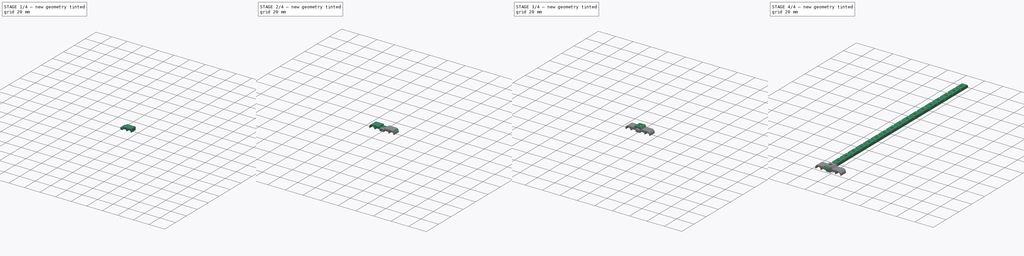
[diagram: build sequence overview — one tinted view per stage of 4, left to right]
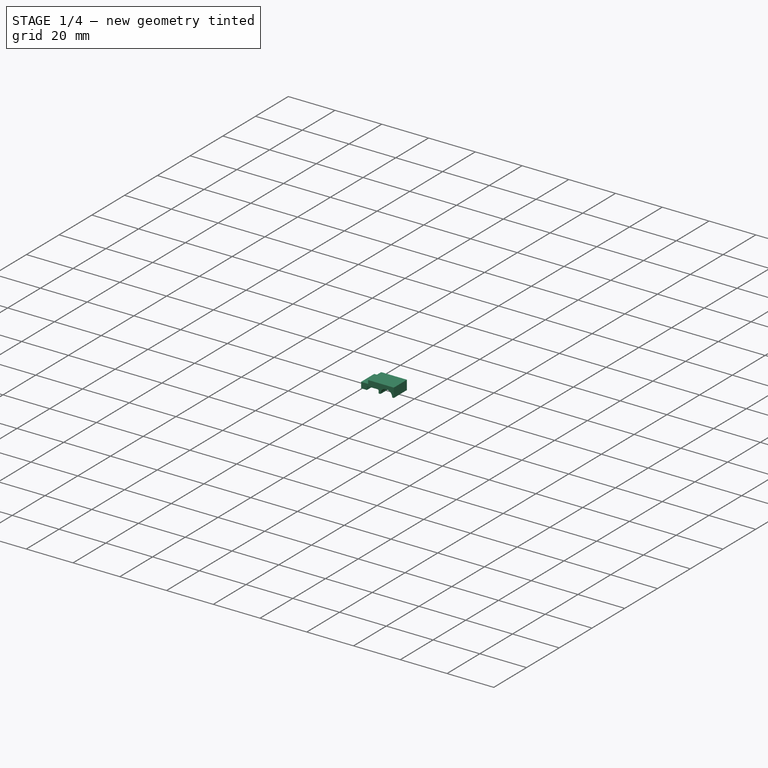
[diagram: stage 1 of 4 — iso view after this stage's code; geometry added in this stage tinted green]
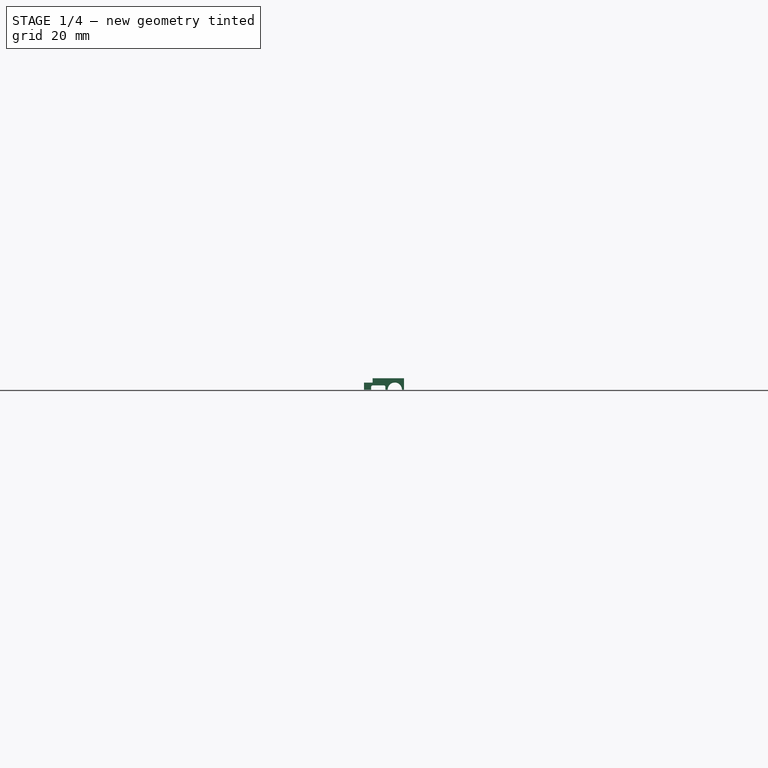
[diagram: stage 1 of 4 — front view after this stage's code; geometry added in this stage tinted green]
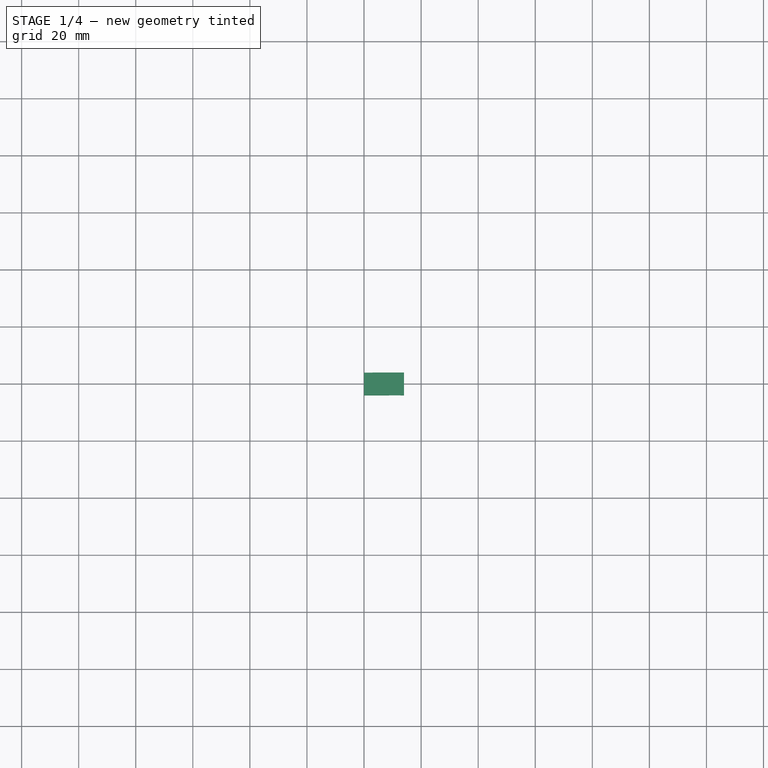
[diagram: stage 1 of 4 — top view after this stage's code; geometry added in this stage tinted green]
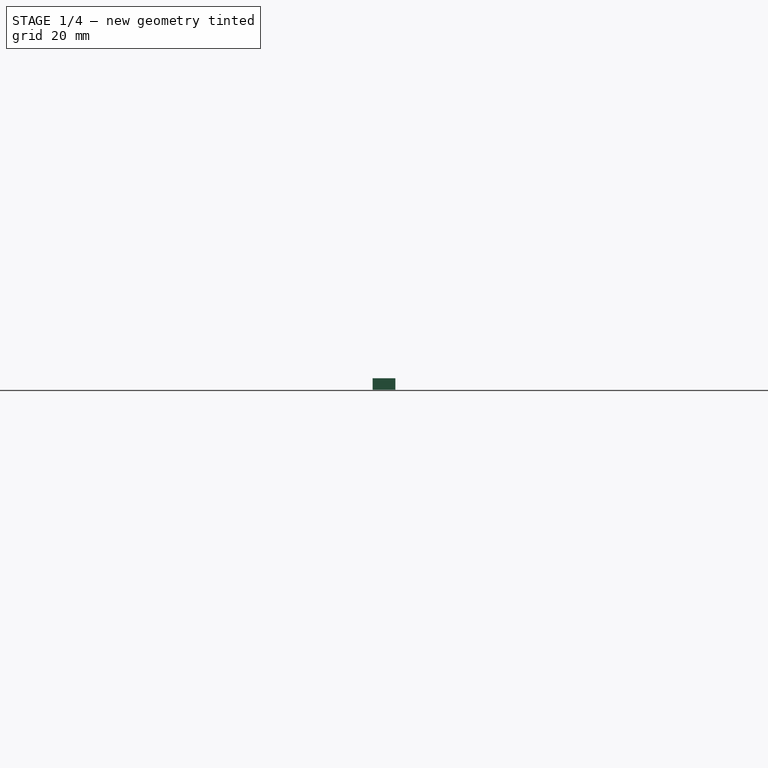
[diagram: stage 1 of 4 — right view after this stage's code; geometry added in this stage tinted green]
FCSTD DOCUMENT  (FreeCAD 1.2R20260204 (Git shallow))
Label: modular-drag-chain
License: All rights reserved
objects: Sketcher::SketchObject×7, PartDesign::Pocket×4, App::Point×3, PartDesign::Pad×3, PartDesign::Body×3, PartDesign::Fillet×2, PartDesign::LinearPattern×1, PartDesign::Chamfer×1, PartDesign::Mirrored×1, PartDesign::FeatureBase×1, App::Link×1
note: 53 computed .brp shape members not serialized (recipe doc carries the construction recipe); baked Part::Feature solids carry a one-line shape summary decoded from their .brp

FEATURE [PartDesign::Body] Body  label="TPU-DragChain"
  AllowCompound = true
  Group = -> [Sketch,Pad,Sketch001,Pocket,LinearPattern]
  Origin = -> Origin
  Tip = -> LinearPattern
FEATURE [App::Point] Origin003  label="Origine002"
  Role = Origin
FEATURE [Sketcher::SketchObject] Sketch002
  ArcFitTolerance = 1e-06
  AttachmentSupport = -> [Origin002]
  ExternalTypes = [0]
  FullyConstrained = true
  MakeInternals = false
  MapMode = 5
  Placement = pos=(0,0,0) rot=(1,0,0;1.5708rad)
  sketch-geometry (6):
    g0: LineSegment StartX=0 StartY=0 StartZ=0 EndX=3 EndY=0 EndZ=0
    g1: LineSegment StartX=3 StartY=0 StartZ=0 EndX=3 EndY=1.5 EndZ=0
    g2: LineSegment StartX=3 StartY=1.5 StartZ=0 EndX=14 EndY=1.5 EndZ=0
    g3: LineSegment StartX=14 StartY=1.5 StartZ=0 EndX=14 EndY=-2.5 EndZ=0
    g4: LineSegment StartX=14 StartY=-2.5 StartZ=0 EndX=0 EndY=-2.5 EndZ=0
    g5: LineSegment StartX=0 StartY=-2.5 StartZ=0 EndX=0 EndY=0 EndZ=0
  constraints (17):
    c: Coincident(g0,g-1)
    c: PointOnObject(g0,g-1)
    c: Coincident(g1,g0)
    c: Vertical(g1)
    c: Coincident(g2,g1)
    c: Horizontal(g2)
    c: Coincident(g3,g2)
    c: Vertical(g3)
    c: Coincident(g4,g3)
    c: Horizontal(g4)
    c: Coincident(g5,g4)
    c: Coincident(g5,g0)
    c: Vertical(g5)
    c: DistanceX(g0,g0) = 3
    c: DistanceY(g1,g1) = 1.5
    c: DistanceX(g4,g4) = 14
    c: DistanceY(g3,g3) = 4
FEATURE [PartDesign::Pad] Pad001
  Direction = (0,-1,2e-16)
  Length = 8
  Length2 = 10
  Profile = -> Sketch002
  ReferenceAxis = -> Sketch002 [N_Axis]
  Refine = true
  SideType = 2
  Suppressed = false
  Type = 0
  Type2 = 0
FEATURE [Sketcher::SketchObject] Sketch003
  ArcFitTolerance = 1e-06
  AttachmentSupport = -> [Origin002]
  ExternalGeometry = -> [Pad001]
  ExternalTypes = [0]
  FullyConstrained = true
  MakeInternals = false
  MapMode = 5
  Placement = pos=(0,0,0) rot=(1,0,0;1.5708rad)
  sketch-geometry (5):
    g0: Circle CenterX=10.8 CenterY=-2.5 CenterZ=0 NormalX=0 NormalY=0 NormalZ=1 AngleXU=0 Radius=2.5
    g1: LineSegment StartX=2.5 StartY=-2.5 StartZ=0 EndX=7.5 EndY=-2.5 EndZ=0
    g2: LineSegment StartX=7.5 StartY=-2.5 StartZ=0 EndX=7.5 EndY=-1 EndZ=0
    g3: LineSegment StartX=7.5 StartY=-1 StartZ=0 EndX=2.5 EndY=-1 EndZ=0
    g4: LineSegment StartX=2.5 StartY=-1 StartZ=0 EndX=2.5 EndY=-2.5 EndZ=0
  constraints (15):
    c: PointOnObject(g0,g-3)
    c: Diameter(g0) = 5
    c: Distance(g0,g-3) = 3.2
    c: Coincident(g1,g2)
    c: Coincident(g2,g3)
    c: Coincident(g3,g4)
    c: Coincident(g4,g1)
    c: Horizontal(g1)
    c: Horizontal(g3)
    c: Vertical(g2)
    c: Vertical(g4)
    c: PointOnObject(g1,g-3)
    c: DistanceX(g3,g3) = 5
    c: Distance(g-3,g1) = 2.5
    c: Distance(g2,g2) = 1.5
FEATURE [PartDesign::Pocket] Pocket001
  BaseFeature = -> Pad001
  Direction = (0,1,0)
  Length = 10
  Length2 = 5
  Profile = -> Sketch003
  ReferenceAxis = -> Sketch003 [N_Axis]
  Refine = true
  SideType = 2
  Suppressed = false
  Type = 0
  Type2 = 0
FEATURE [PartDesign::Fillet] Fillet
  Base = -> Pocket001 [Edge31,Edge32]
  BaseFeature = -> Pocket001
  Radius = 0.5
  Refine = true
  SupportTransform = false
  Suppressed = false
  UseAllEdges = false
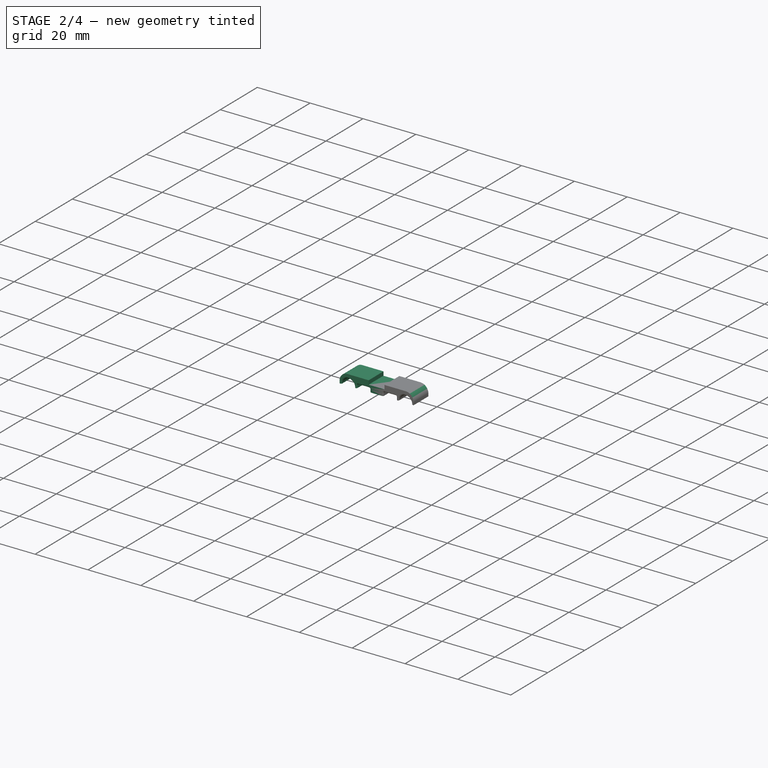
[diagram: stage 2 of 4 — iso view after this stage's code; geometry added in this stage tinted green]
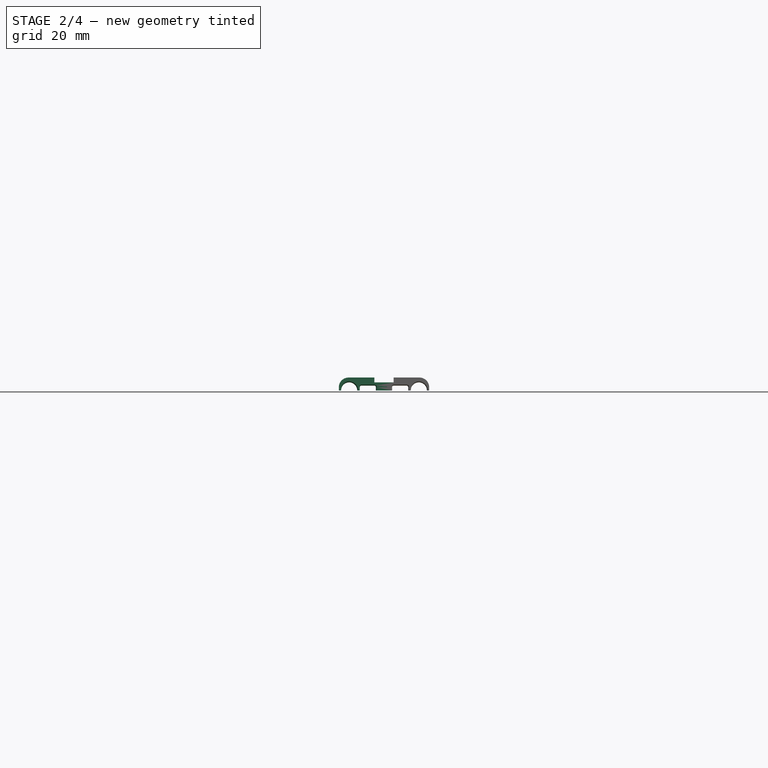
[diagram: stage 2 of 4 — front view after this stage's code; geometry added in this stage tinted green]
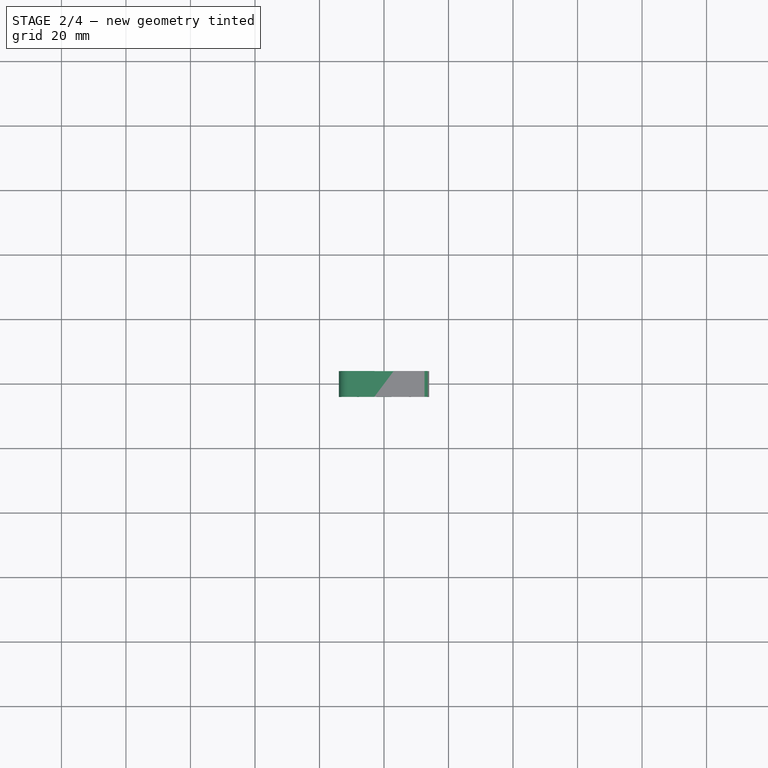
[diagram: stage 2 of 4 — top view after this stage's code; geometry added in this stage tinted green]
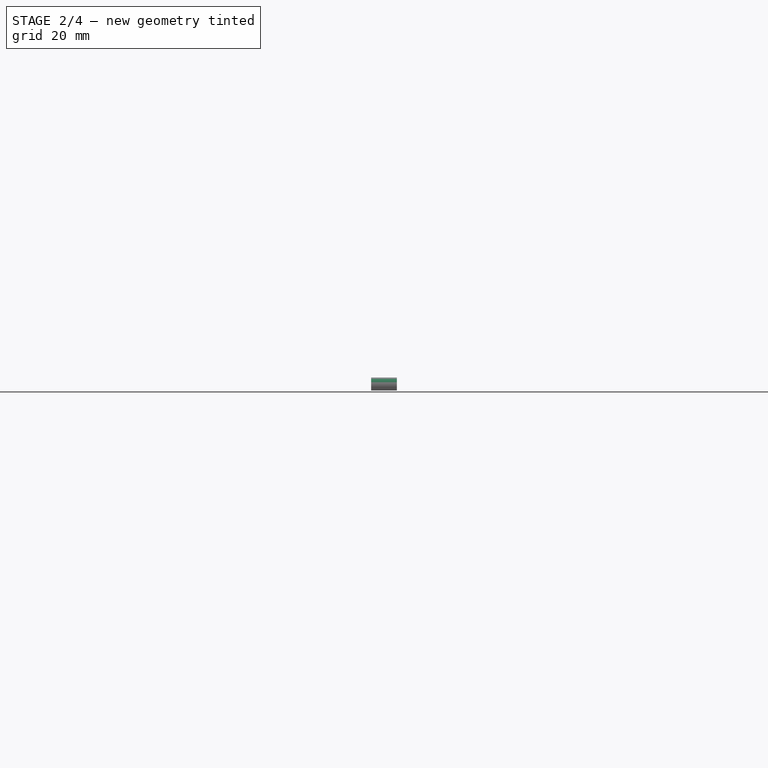
[diagram: stage 2 of 4 — right view after this stage's code; geometry added in this stage tinted green]
FEATURE [PartDesign::Fillet] Fillet001
  Base = -> Fillet [Edge36]
  BaseFeature = -> Fillet
  Radius = 3
  Refine = true
  SupportTransform = false
  Suppressed = false
  UseAllEdges = false
FEATURE [PartDesign::Chamfer] Chamfer
  Angle = 45
  Base = -> Fillet001 [Edge31,Edge8,Edge45,Edge15]
  BaseFeature = -> Fillet001
  ChamferType = 0
  FlipDirection = false
  Refine = true
  Size = 0.3
  Size2 = 1
  SupportTransform = false
  Suppressed = false
  UseAllEdges = false
FEATURE [PartDesign::Mirrored] Mirrored
  BaseFeature = -> Chamfer
  MirrorPlane = -> YZ_Plane001
  Refine = true
  Suppressed = false
  TransformMode = 1
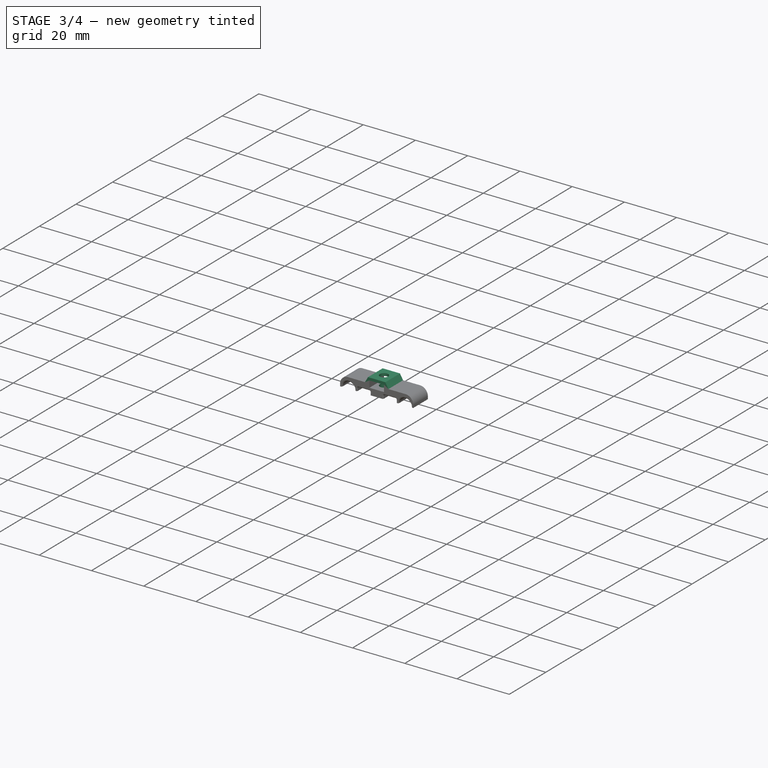
[diagram: stage 3 of 4 — iso view after this stage's code; geometry added in this stage tinted green]
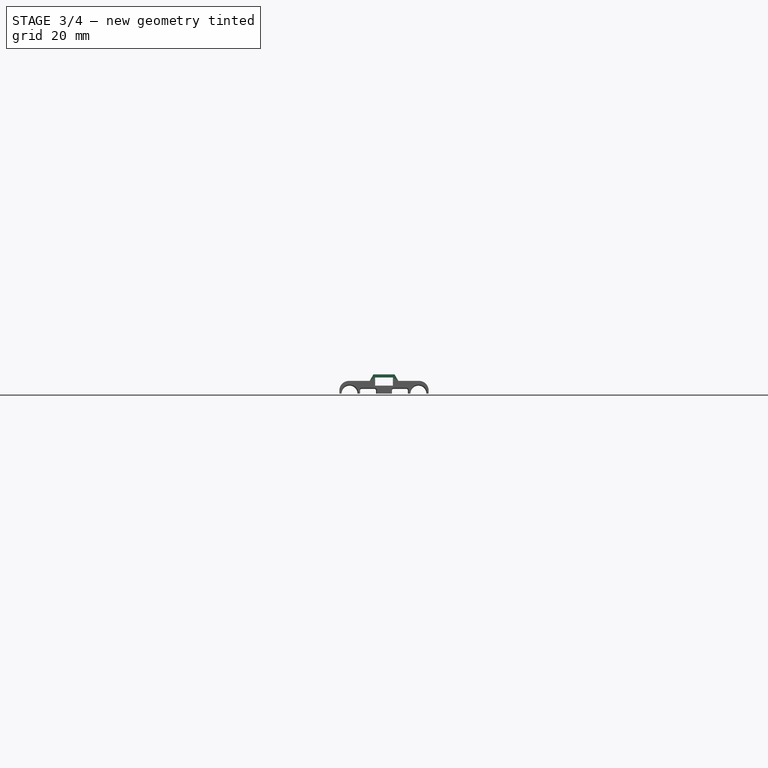
[diagram: stage 3 of 4 — front view after this stage's code; geometry added in this stage tinted green]
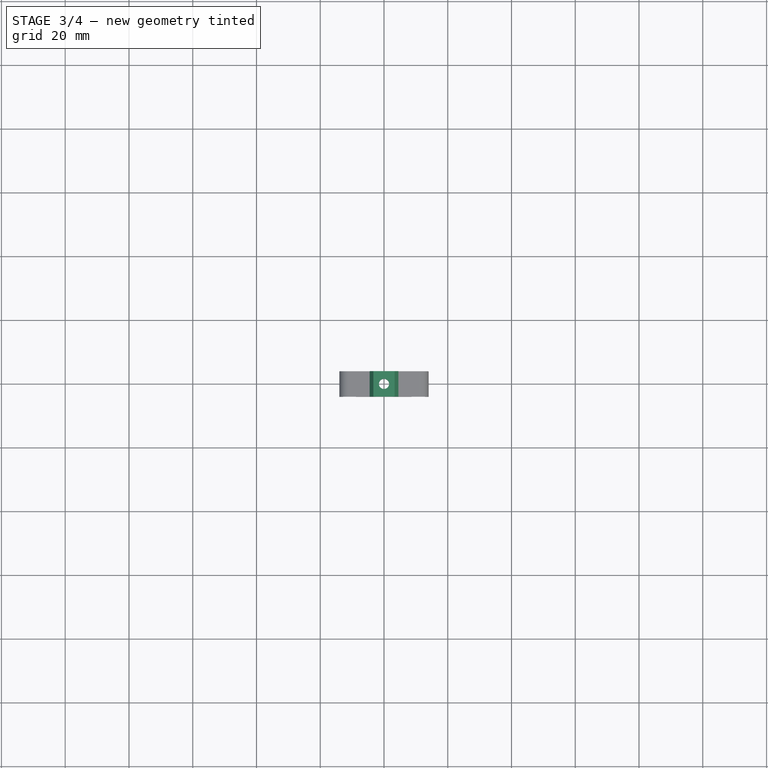
[diagram: stage 3 of 4 — top view after this stage's code; geometry added in this stage tinted green]
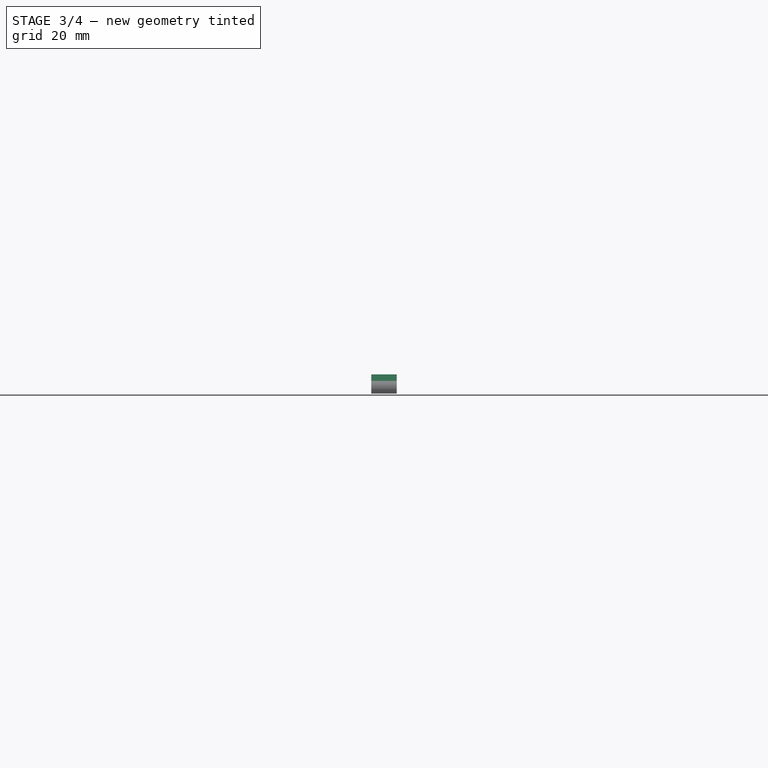
[diagram: stage 3 of 4 — right view after this stage's code; geometry added in this stage tinted green]
FEATURE [Sketcher::SketchObject] Sketch004
  ArcFitTolerance = 1e-06
  AttachmentSupport = -> [Mirrored]
  ExternalTypes = [0]
  FullyConstrained = true
  MakeInternals = false
  MapMode = 5
  Placement = pos=(0,0,-3e-16) rot=(0,0,1;0rad)
  sketch-geometry (1):
    g0: Circle CenterX=0 CenterY=0 CenterZ=0 NormalX=0 NormalY=0 NormalZ=1 AngleXU=0 Radius=1.6
  constraints (2):
    c: Coincident(g0,g-1)
    c: Diameter(g0) = 3.2
FEATURE [PartDesign::Pocket] Pocket002
  BaseFeature = -> Mirrored
  Direction = (0,0,-1)
  Length = 5
  Length2 = 5
  Profile = -> Sketch004
  ReferenceAxis = -> Sketch004 [N_Axis]
  Refine = true
  SideType = 0
  Suppressed = false
  Type = 0
  Type2 = 0
FEATURE [PartDesign::Body] Body001  label="CableHolderRear"
  AllowCompound = true
  Group = -> [Sketch002,Pad001,Sketch003,Pocket001,Fillet,Fillet001,Chamfer,Mirrored,Sketch004,Pocket002]
  Origin = -> Origin002
  Tip = -> Pocket002
FEATURE [App::Point] Origin005  label="Origine004"
  Role = Origin
FEATURE [PartDesign::FeatureBase] Clone
  BaseFeature = -> Body001
  Suppressed = false
FEATURE [Sketcher::SketchObject] Sketch005
  ArcFitTolerance = 1e-06
  AttachmentSupport = -> [Clone]
  ExternalGeometry = -> [Clone]
  ExternalTypes = [0,0]
  FullyConstrained = true
  MakeInternals = false
  MapMode = 5
  Placement = pos=(0,4,0) rot=(0,0.707107,0.707107;3.14159rad)
  sketch-geometry (14):
    g0: LineSegment StartX=-3 StartY=1.5 StartZ=0 EndX=-4.5 EndY=1.5 EndZ=0
    g1: LineSegment StartX=-4.5 StartY=1.5 StartZ=0 EndX=-3.31643 EndY=3.55 EndZ=0
    g2: LineSegment StartX=-3.31643 StartY=3.55 StartZ=0 EndX=3.31643 EndY=3.55 EndZ=0
    g3: LineSegment StartX=3.31643 StartY=3.55 StartZ=0 EndX=4.5 EndY=1.5 EndZ=0
    g4: LineSegment StartX=4.5 StartY=1.5 StartZ=0 EndX=3 EndY=1.5 EndZ=0
    g5: LineSegment StartX=-2.8 StartY=2.55 StartZ=0 EndX=-2.8 EndY=0 EndZ=0
    g6: LineSegment [constr] StartX=-2.8 StartY=0 StartZ=0 EndX=2.8 EndY=0 EndZ=0
    g7: LineSegment StartX=2.8 StartY=0 StartZ=0 EndX=2.8 EndY=2.55 EndZ=0
    g8: LineSegment StartX=2.8 StartY=2.55 StartZ=0 EndX=-2.8 EndY=2.55 EndZ=0
    g9: GeomPoint [constr] X=0 Y=1.275 Z=0
    g10: LineSegment StartX=-3 StartY=1.5 StartZ=0 EndX=-3 EndY=0 EndZ=0
    g11: LineSegment StartX=-3 StartY=0 StartZ=0 EndX=-2.8 EndY=0 EndZ=0
    g12: LineSegment StartX=2.8 StartY=0 StartZ=0 EndX=3 EndY=0 EndZ=0
    g13: LineSegment StartX=3 StartY=0 StartZ=0 EndX=3 EndY=1.5 EndZ=0
  constraints (34):
    c: Coincident(g0,g-3)
    c: Horizontal(g0)
    c: Coincident(g1,g0)
    c: Coincident(g2,g1)
    c: Coincident(g3,g2)
    c: Coincident(g4,g3)
    c: Coincident(g4,g-4)
    c: Horizontal(g4)
    c: Equal(g0,g4)
    c: Symmetric(g1,g2,g-2)
    c: Coincident(g5,g6)
    c: Coincident(g6,g7)
    c: Coincident(g7,g8)
    c: Coincident(g8,g5)
    c: Vertical(g5)
    c: Vertical(g7)
    c: Horizontal(g6)
    c: Horizontal(g8)
    c: Symmetric(g7,g5,g9)
    c: PointOnObject(g9,g-2)
    c: Distance(g7,g7) = 2.55
    c: PointOnObject(g6,g-1)
    c: Distance(g8,g8) = 5.6
    c: Distance(g2,g8) = 1
    c: Coincident(g10,g0)
    c: Coincident(g10,g-3)
    c: Coincident(g11,g10)
    c: Coincident(g11,g5)
    c: DistanceX(g0,g0) = 1.5
    c: Angle(g0,g1) = 1.0472
    c: Coincident(g12,g6)
    c: Coincident(g12,g-4)
    c: Coincident(g13,g12)
    c: Coincident(g13,g4)
FEATURE [PartDesign::Pad] Pad002
  BaseFeature = -> Clone
  Direction = (0,1,0)
  Length = 8
  Length2 = 10
  Profile = -> Sketch005
  ReferenceAxis = -> Sketch005 [N_Axis]
  Refine = true
  Reversed = true
  SideType = 0
  Suppressed = false
  Type = 0
  Type2 = 0
FEATURE [Sketcher::SketchObject] Sketch006
  ArcFitTolerance = 1e-06
  AttachmentSupport = -> [Pad002]
  ExternalTypes = [0]
  FullyConstrained = true
  MakeInternals = false
  MapMode = 5
  Placement = pos=(0,6e-16,2.55) rot=(1,0,0;3.14159rad)
  sketch-geometry (1):
    g0: Circle CenterX=0 CenterY=0 CenterZ=0 NormalX=0 NormalY=0 NormalZ=1 AngleXU=0 Radius=1.6
  constraints (2):
    c: Coincident(g0,g-1)
    c: Diameter(g0) = 3.2
FEATURE [PartDesign::Pocket] Pocket003
  BaseFeature = -> Pad002
  Direction = (0,0,1)
  Length = 5
  Length2 = 5
  Profile = -> Sketch006
  ReferenceAxis = -> Sketch006 [N_Axis]
  Refine = true
  SideType = 0
  Suppressed = false
  Type = 0
  Type2 = 0
FEATURE [PartDesign::Body] Body002  label="CableHolderFrontNuts"
  AllowCompound = true
  Group = -> [Clone,Sketch005,Pad002,Sketch006,Pocket003]
  Origin = -> Origin004
  Placement = pos=(0,0,-5) rot=(0,1,0;3.14159rad)
  Tip = -> Pocket003
FEATURE [App::Link] Link  label="CableHolderFront"
  LinkPlacement = pos=(0,0,-5) rot=(0,1,0;3.14159rad)
  LinkedObject = -> Body001
  Placement = pos=(0,0,-5) rot=(0,1,0;3.14159rad)
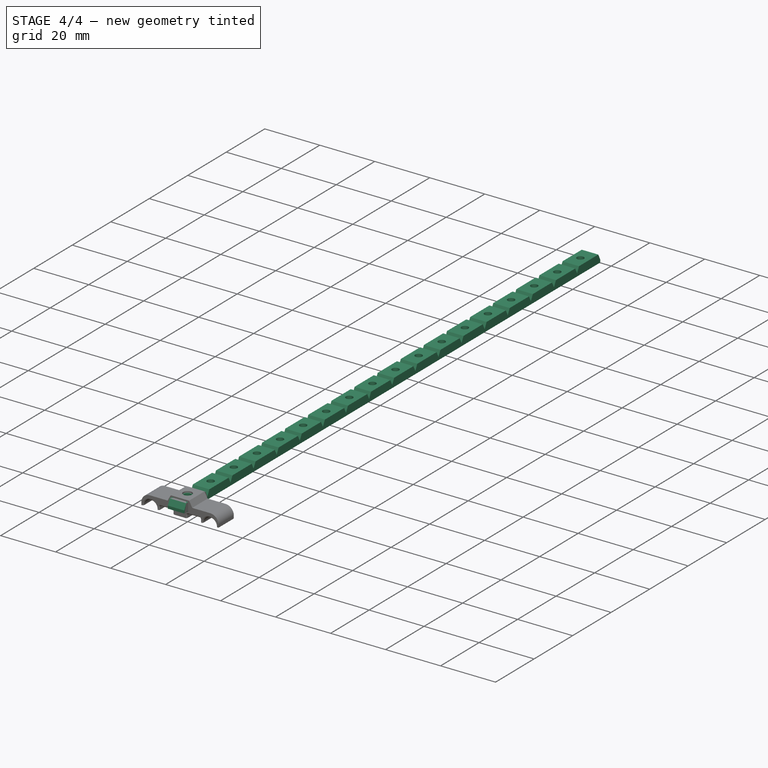
[diagram: stage 4 of 4 — iso view after this stage's code; geometry added in this stage tinted green]
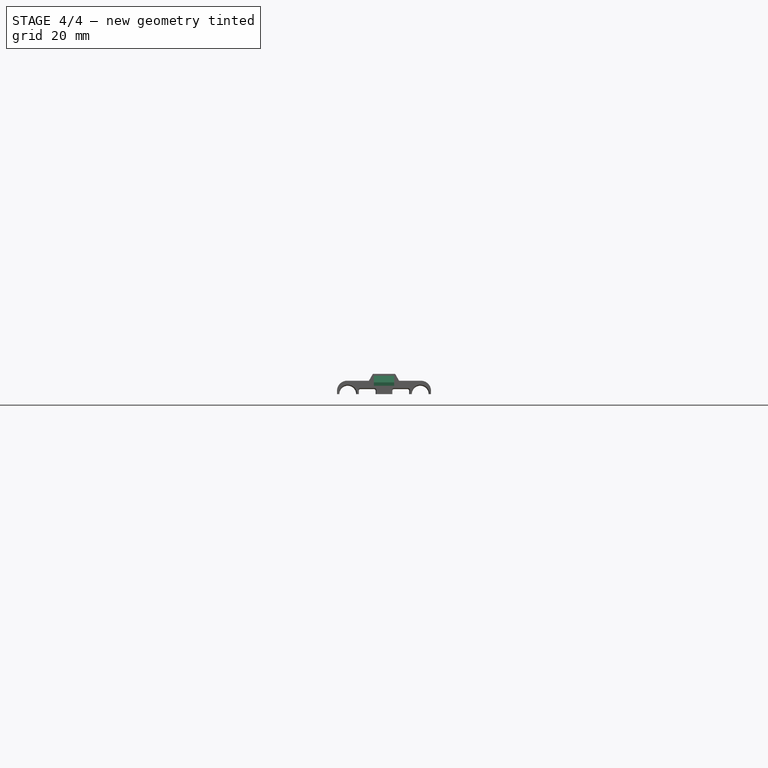
[diagram: stage 4 of 4 — front view after this stage's code; geometry added in this stage tinted green]
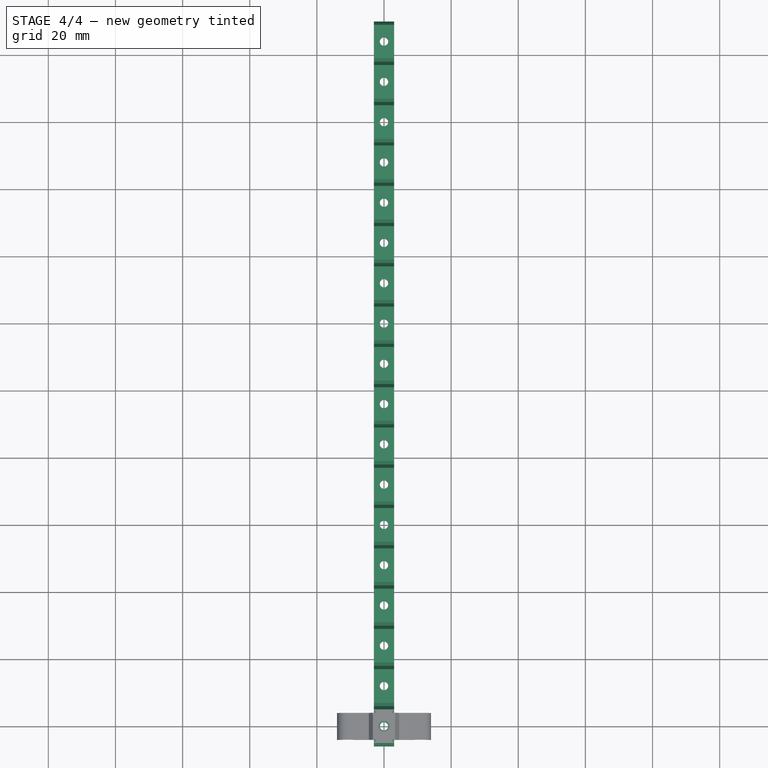
[diagram: stage 4 of 4 — top view after this stage's code; geometry added in this stage tinted green]
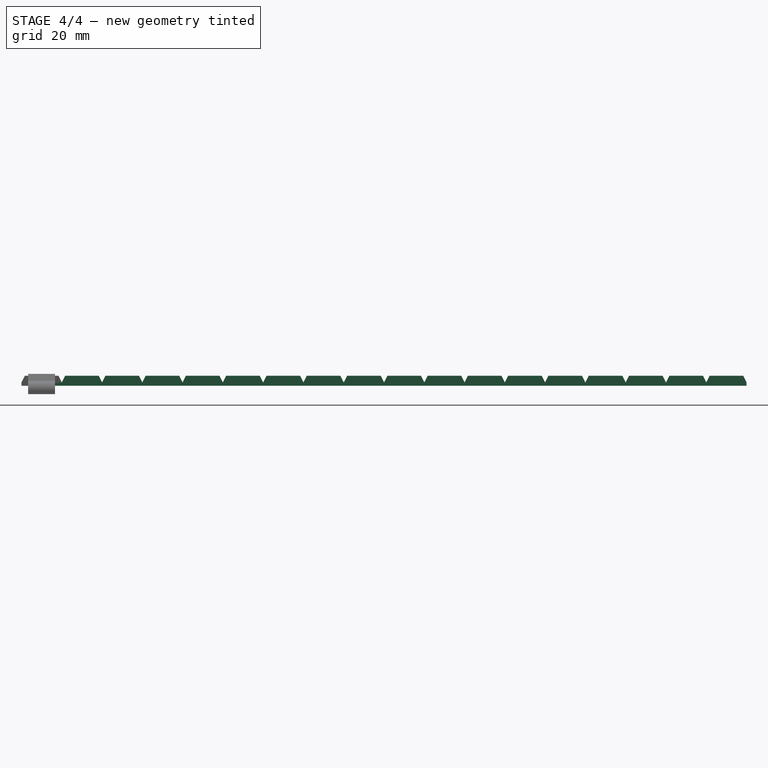
[diagram: stage 4 of 4 — right view after this stage's code; geometry added in this stage tinted green]
FEATURE [App::Point] Origin001  label="Origine"
  Role = Origin
FEATURE [Sketcher::SketchObject] Sketch
  ArcFitTolerance = 1e-06
  AttachmentSupport = -> [Origin]
  ExternalTypes = [0]
  FullyConstrained = false
  MakeInternals = false
  MapMode = 5
  Placement = pos=(0,0,0) rot=(0.57735,0.57735,0.57735;2.0944rad)
  sketch-geometry (7):
    g0: LineSegment StartX=-6 StartY=0 StartZ=0 EndX=6 EndY=0 EndZ=0
    g1: LineSegment StartX=5 StartY=3 StartZ=0 EndX=-5 EndY=3 EndZ=0
    g2: GeomPoint [constr] X=0 Y=2.42993 Z=0
    g3: LineSegment StartX=-6 StartY=0 StartZ=0 EndX=-6 EndY=1 EndZ=0
    g4: LineSegment StartX=-5 StartY=3 StartZ=0 EndX=-6 EndY=1 EndZ=0
    g5: LineSegment StartX=5 StartY=3 StartZ=0 EndX=6 EndY=1 EndZ=0
    g6: LineSegment StartX=6 StartY=0 StartZ=0 EndX=6 EndY=1 EndZ=0
  constraints (17):
    c: PointOnObject(g2,g-2)
    c: PointOnObject(g0,g-1)
    c: Symmetric(g1,g1,g-2)
    c: Symmetric(g0,g0,g-2)
    c: DistanceX(g0,g0) = 12
    c: Distance(g1,g0) = 3
    c: Distance(g1,g1) = 10
    c: Coincident(g3,g0)
    c: Vertical(g3)
    c: Coincident(g4,g1)
    c: Coincident(g4,g3)
    c: Coincident(g5,g1)
    c: Coincident(g6,g0)
    c: Coincident(g6,g5)
    c: Equal(g6,g3)
    c: Vertical(g6)
    c: Distance(g6,g6) = 1
FEATURE [PartDesign::Pad] Pad
  Direction = (1,0,0)
  Length = 6
  Length2 = 10
  Profile = -> Sketch
  ReferenceAxis = -> Sketch [N_Axis]
  Refine = true
  SideType = 2
  Suppressed = false
  Type = 0
  Type2 = 0
FEATURE [Sketcher::SketchObject] Sketch001
  ArcFitTolerance = 1e-06
  AttachmentSupport = -> [Origin]
  ExternalTypes = [0]
  FullyConstrained = true
  MakeInternals = false
  MapMode = 5
  sketch-geometry (1):
    g0: Circle CenterX=0 CenterY=0 CenterZ=0 NormalX=0 NormalY=0 NormalZ=1 AngleXU=0 Radius=1.25
  constraints (2):
    c: Coincident(g0,g-1)
    c: Diameter(g0) = 2.5
FEATURE [PartDesign::Pocket] Pocket
  BaseFeature = -> Pad
  Direction = (0,0,-1)
  Length = 5
  Length2 = 5
  Profile = -> Sketch001
  ReferenceAxis = -> Sketch001 [N_Axis]
  Refine = true
  Reversed = true
  SideType = 0
  Suppressed = false
  Type = 0
  Type2 = 0
FEATURE [PartDesign::LinearPattern] LinearPattern
  BaseFeature = -> Pocket
  Direction = -> Y_Axis
  Direction2 = -> X_Axis
  Length = 204
  Length2 = 100
  Mode = 1
  Mode2 = 0
  Occurrences = 18
  Occurrences2 = 1
  Offset = 12
  Offset2 = 100
  Refine = true
  Reversed2 = false
  SpacingPattern = [12]
  SpacingPattern2 = [0]
  Spacings = [-1,-1,-1,-1,-1,-1,-1,-1,-1,-1,-1,-1,-1,-1,-1,-1,-1]
  Suppressed = false
  TransformMode = 1
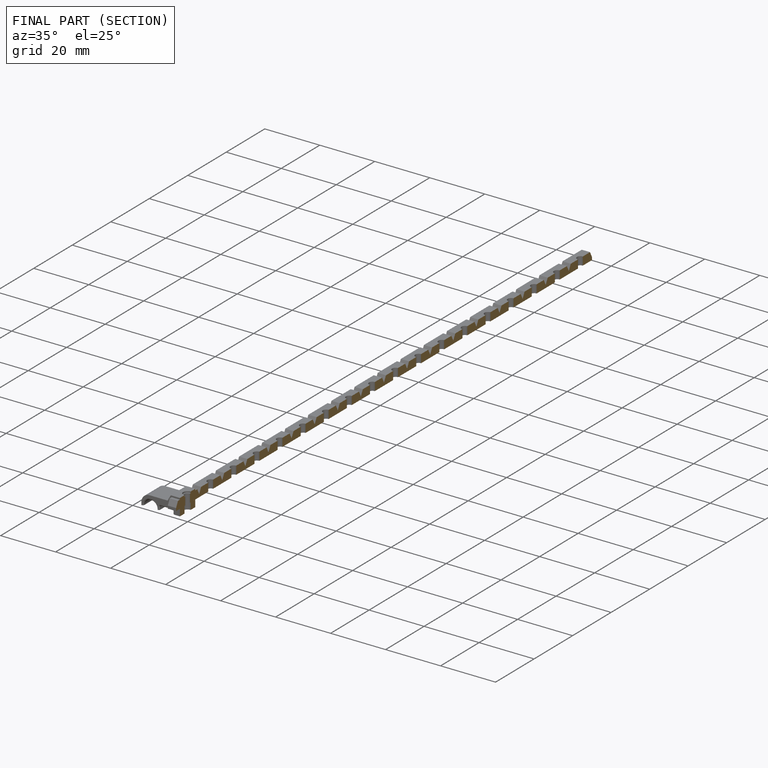
[diagram: finished part — half-section view (interior)]
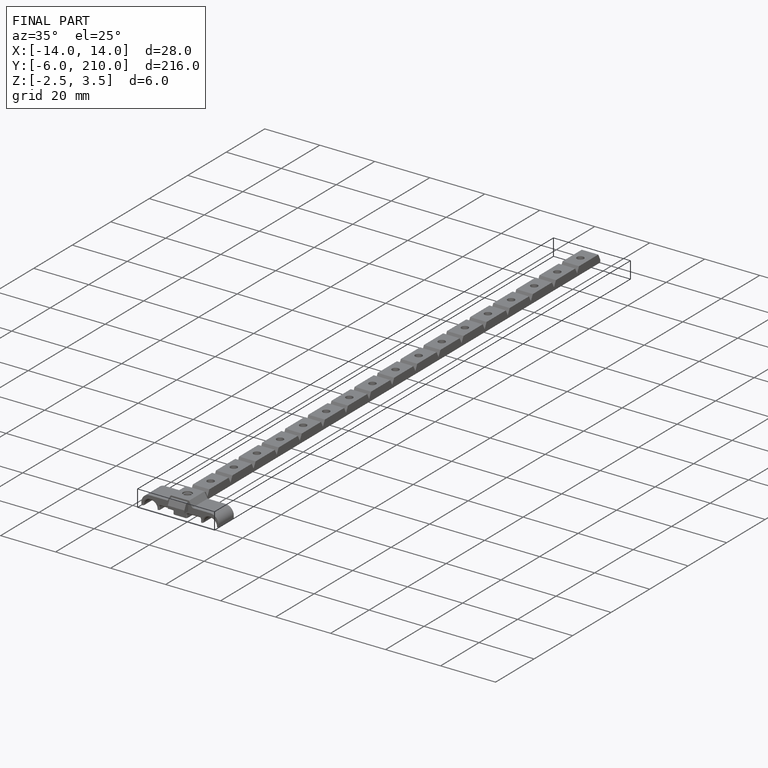
[diagram: finished part — iso view with bounding-box wireframe]
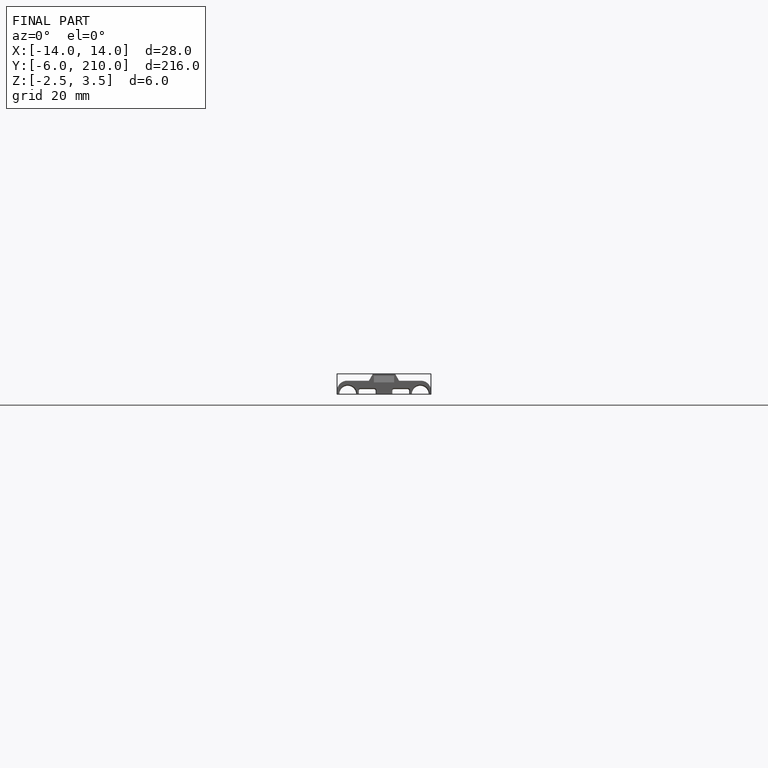
[diagram: finished part — front view with bounding-box wireframe]
